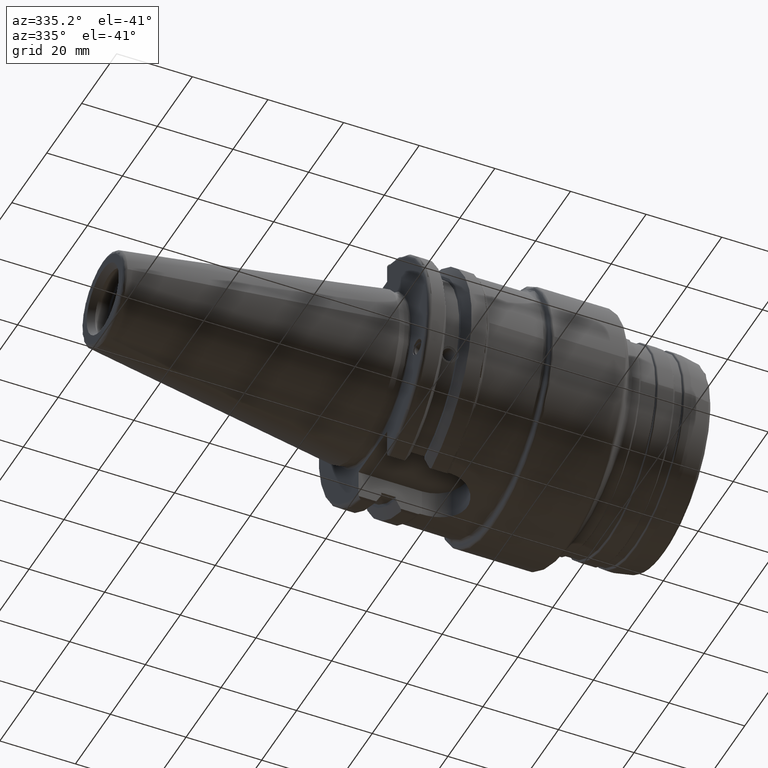
[diagram: clean part render]
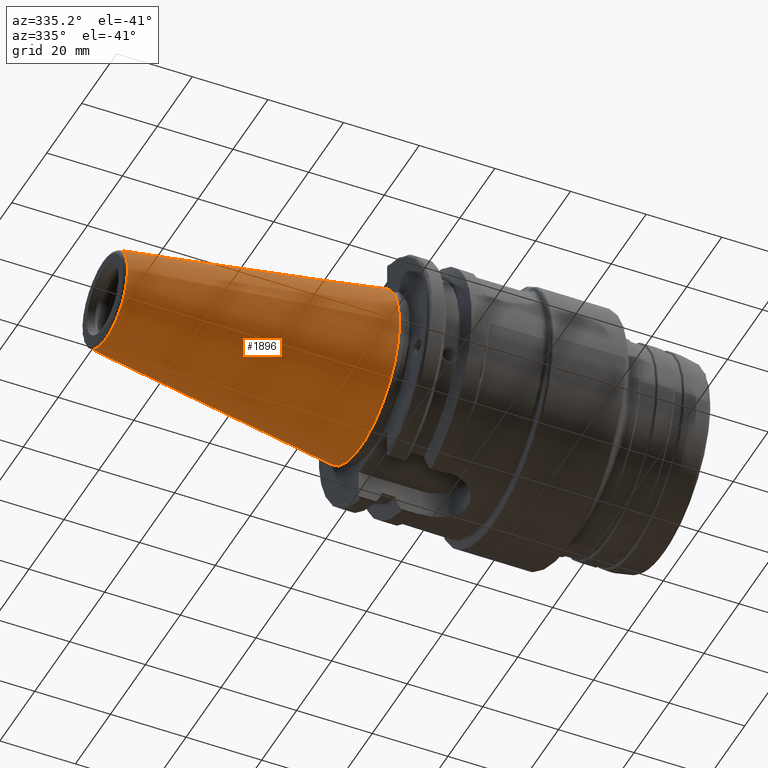
[diagram: same view with one face highlighted and labeled with its STEP entity id]
A machine part, auxiliary view. The second image highlights one B-rep face of the part: STEP entity #1896.
In plain terms, the highlighted conical surface has half-angle 8.297 deg.
Its self-contained STEP definition (entity closure, byte-faithful):
#143=CONICAL_SURFACE('',#2159,17.2484375,0.144812498238939);
#226=LINE('',#3675,#319);
#319=VECTOR('',#2708,17.2484375);
#450=FACE_OUTER_BOUND('',#569,.T.);
#569=EDGE_LOOP('',(#1661,#1662,#1663,#1664,#1665));
#709=CIRCLE('',#2153,12.3966635780937);
#710=CIRCLE('',#2154,12.3966635780937);
#714=CIRCLE('',#2160,22.225);
#906=VERTEX_POINT('',#3662);
#907=VERTEX_POINT('',#3663);
#910=VERTEX_POINT('',#3673);
#1174=EDGE_CURVE('',#906,#907,#709,.T.);
#1175=EDGE_CURVE('',#907,#906,#710,.T.);
#1179=EDGE_CURVE('',#910,#910,#714,.T.);
#1180=EDGE_CURVE('',#910,#907,#226,.T.);
#1661=ORIENTED_EDGE('',*,*,#1179,.F.);
#1662=ORIENTED_EDGE('',*,*,#1180,.T.);
#1663=ORIENTED_EDGE('',*,*,#1174,.F.);
#1664=ORIENTED_EDGE('',*,*,#1175,.F.);
#1665=ORIENTED_EDGE('',*,*,#1180,.F.);
#1896=ADVANCED_FACE('',(#450),#143,.T.);
#2153=AXIS2_PLACEMENT_3D('',#3664,#2692,#2693);
#2154=AXIS2_PLACEMENT_3D('',#3665,#2694,#2695);
#2159=AXIS2_PLACEMENT_3D('',#3672,#2704,#2705);
#2160=AXIS2_PLACEMENT_3D('',#3674,#2706,#2707);
#2692=DIRECTION('center_axis',(-1.,0.,0.));
#2693=DIRECTION('ref_axis',(0.,-1.,3.06161699786838E-17));
#2694=DIRECTION('center_axis',(-1.,0.,0.));
#2695=DIRECTION('ref_axis',(0.,-1.,3.06161699786838E-17));
#2704=DIRECTION('center_axis',(1.,0.,0.));
#2705=DIRECTION('ref_axis',(0.,1.,0.));
#2706=DIRECTION('center_axis',(1.,0.,0.));
#2707=DIRECTION('ref_axis',(0.,0.,-1.));
#2708=DIRECTION('',(-0.989532981063282,0.144306893071729,1.76724974695192E-17));
#3662=CARTESIAN_POINT('',(-67.3943068930717,-1.5181534371019E-15,12.3966635780937));
#3663=CARTESIAN_POINT('',(-67.3943068930718,-12.3966635780937,-1.5181534371019E-15));
#3664=CARTESIAN_POINT('Origin',(-67.3943068930717,0.,-1.89769179637738E-15));
#3665=CARTESIAN_POINT('Origin',(-67.3943068930717,0.,-1.89769179637738E-15));
#3672=CARTESIAN_POINT('Origin',(-34.125,0.,0.));
#3673=CARTESIAN_POINT('',(0.,-22.225,-2.72177751110499E-15));
#3674=CARTESIAN_POINT('Origin',(0.,0.,0.));
#3675=CARTESIAN_POINT('',(-34.125,-17.2484375,-2.11232437746682E-15));